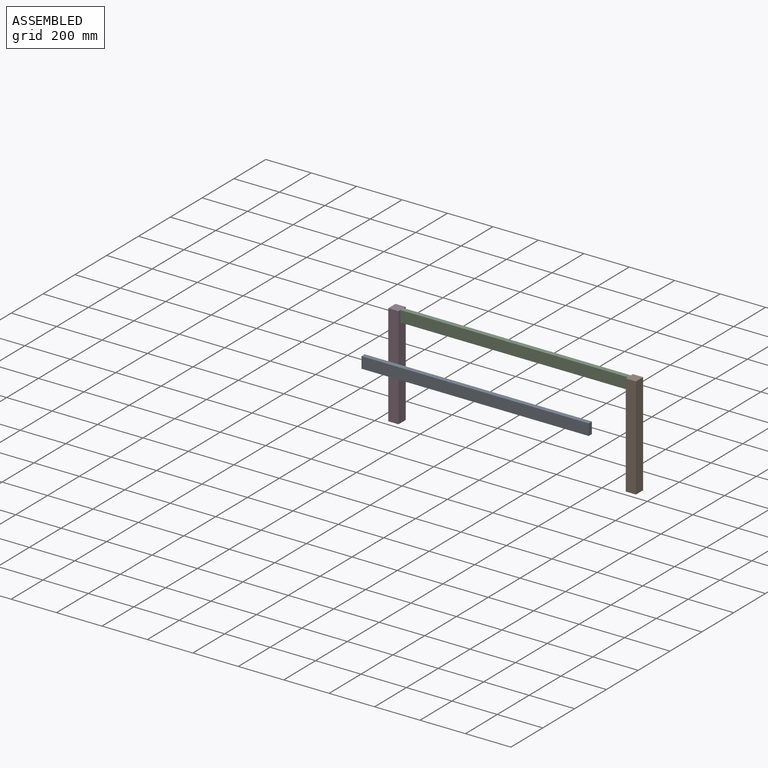
[diagram: assembled view]
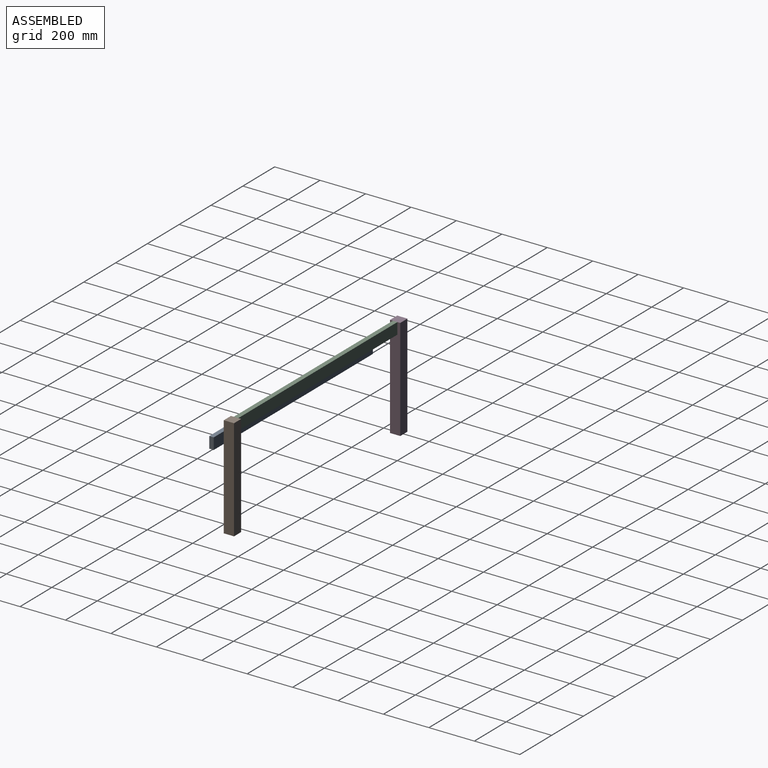
[diagram: assembled view, second angle]
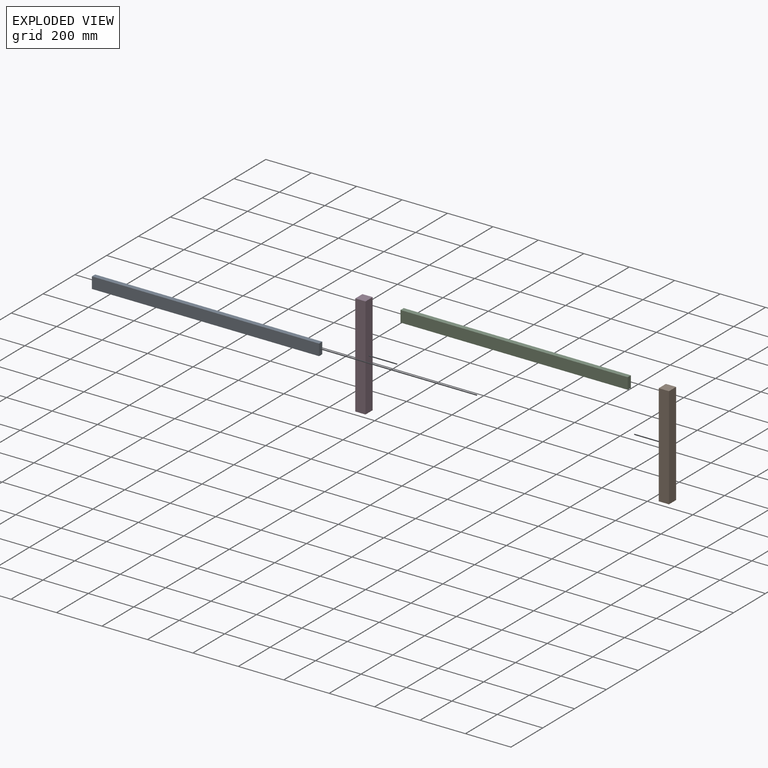
[diagram: exploded view]
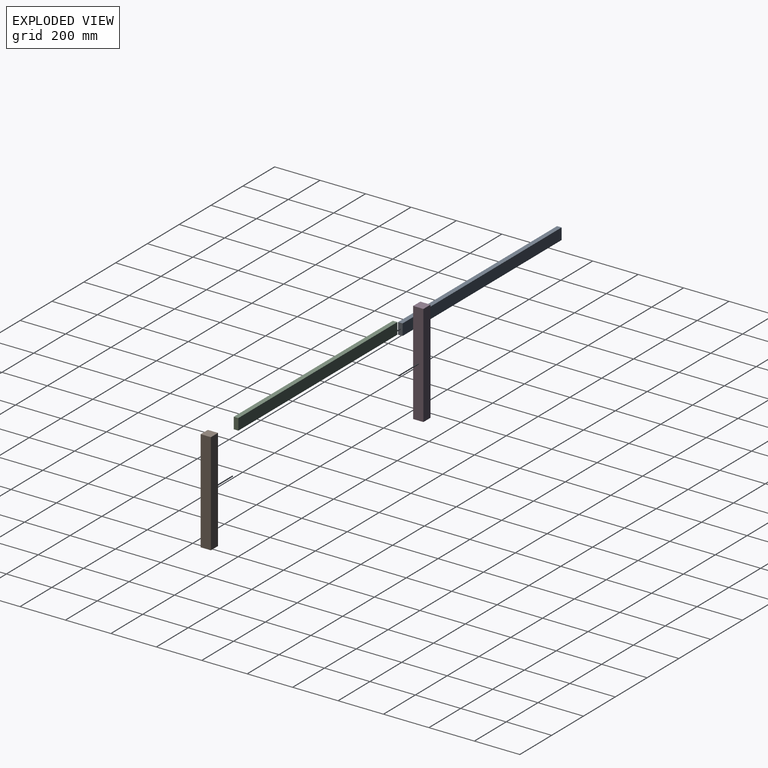
[diagram: exploded view, second angle]
ASSEMBLY  parts=4 mates=2
PART A: 6 faces, bbox 20x50x1000 mm
  f0: plane 1000x20mm, normal (0,-1,0), area 20000mm2, adj f1,f3,f4,f5
  f1: plane 1000x50mm, normal (1,0,0), area 50000mm2, adj f0,f2,f4,f5
  f2: plane 1000x20mm, normal (0,1,0), area 20000mm2, adj f1,f3,f4,f5
  f3: plane 1000x50mm, normal (-1,0,0), area 50000mm2, adj f0,f2,f4,f5
  f4: plane 50x20mm, normal (0,0,1), area 1000mm2, adj f0,f1,f2,f3
  f5: plane 50x20mm, normal (0,0,-1), area 1000mm2, adj f0,f1,f2,f3
PART B: 6 faces, bbox 45x45x450 mm
  f0: plane 450x45mm, normal (-1,0,0), area 20250mm2, adj f1,f3,f4,f5
  f1: plane 450x45mm, normal (0,-1,0), area 20250mm2, adj f0,f2,f4,f5
  f2: plane 450x45mm, normal (1,0,0), area 20250mm2, adj f1,f3,f4,f5
  f3: plane 450x45mm, normal (0,1,0), area 20250mm2, adj f0,f2,f4,f5
  f4: plane 45x45mm, normal (0,0,1), area 2025mm2, adj f0,f1,f2,f3
  f5: plane 45x45mm, normal (0,0,-1), area 2025mm2, adj f0,f1,f2,f3
PART C: same geometry as A
PART D: same geometry as B
PLACE A rot(axis=(-0.58,0.58,-0.58),120deg) t=(-19.21,-160.44,300.04)mm
PLACE B t=(1045,0,0)mm
PLACE C rot(axis=(0.58,0.58,0.58),120deg) t=(45,52.2,407.6)mm
PLACE D at identity fixed
MATE fastened D.f4 <-> C.f2  axis (0,0,1) through (45,22.5,450)mm
MATE fastened C.f2 <-> B.f4  axis (0,0,1) through (1045,22.5,450)mm
